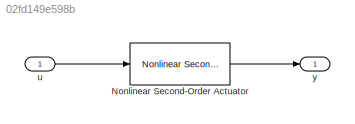
MODEL slx_02fd149e598b
KIND model
BLOCK [Reference] Nonlinear Second-Order Actuator  REF=aerolibactuator/Nonlinear Second-Order Actuator
  Ports = [1, 1]
  SourceBlock = aerolibactuator/Nonlinear Second-Order Actuator
  SourceType = NonlinearSecondOrderActuator
  fin_act_0 = 0
  fin_act_vel = 0
  fin_max = 20*pi/180
  fin_maxrate = 500*pi/180
  fin_min = -20*pi/180
  wn_fin = 1
  z_fin = 0.3
BLOCK [Inport] u
  IconDisplay = Port number
BLOCK [Outport] y
  IconDisplay = Port number
LINE Nonlinear Second-Order Actuator:1 -> y:1
LINE u:1 -> Nonlinear Second-Order Actuator:1
